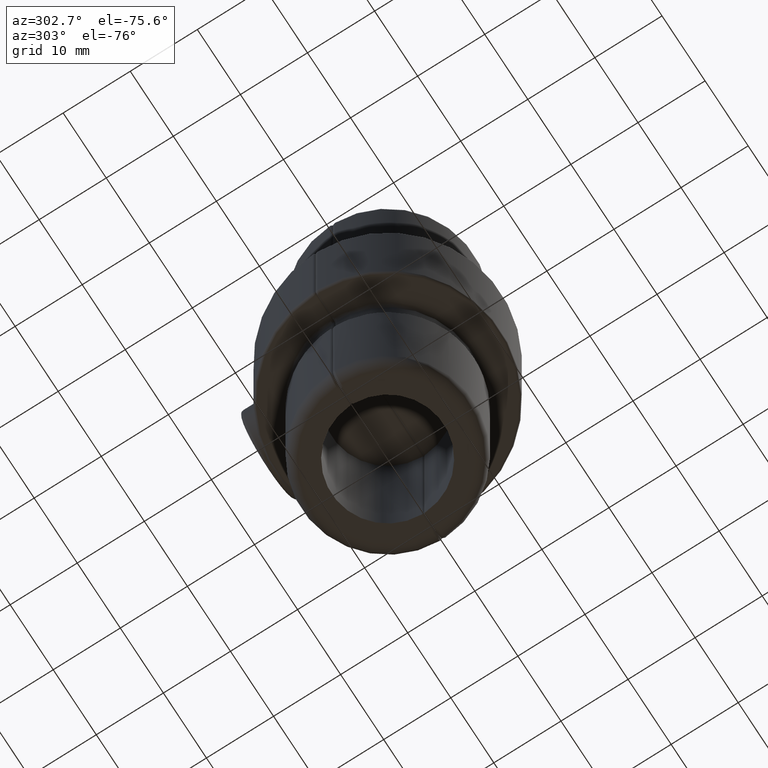
[diagram: clean part render]
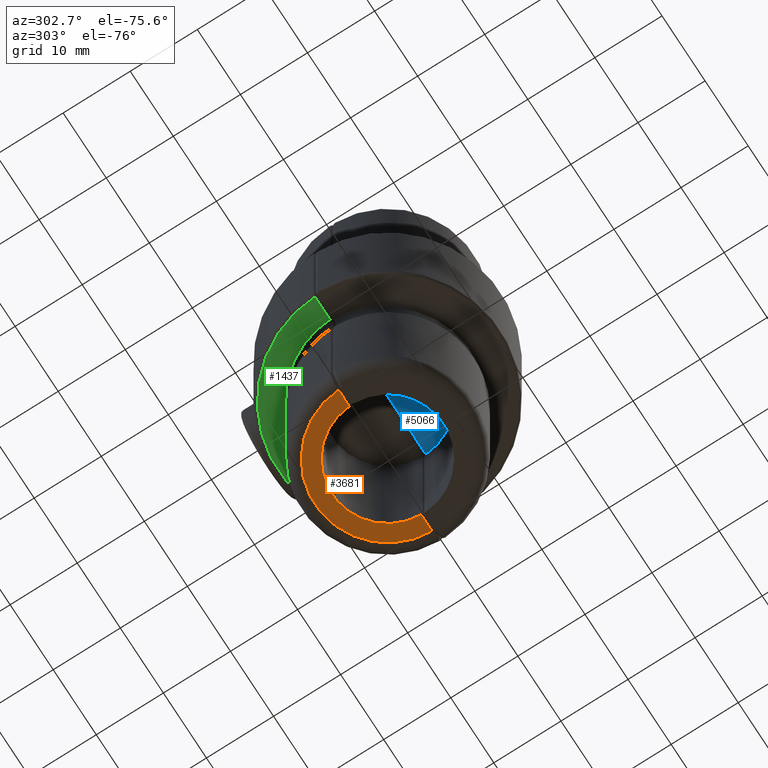
[diagram: same view with three faces highlighted in distinct colors, each labeled with its STEP entity id]
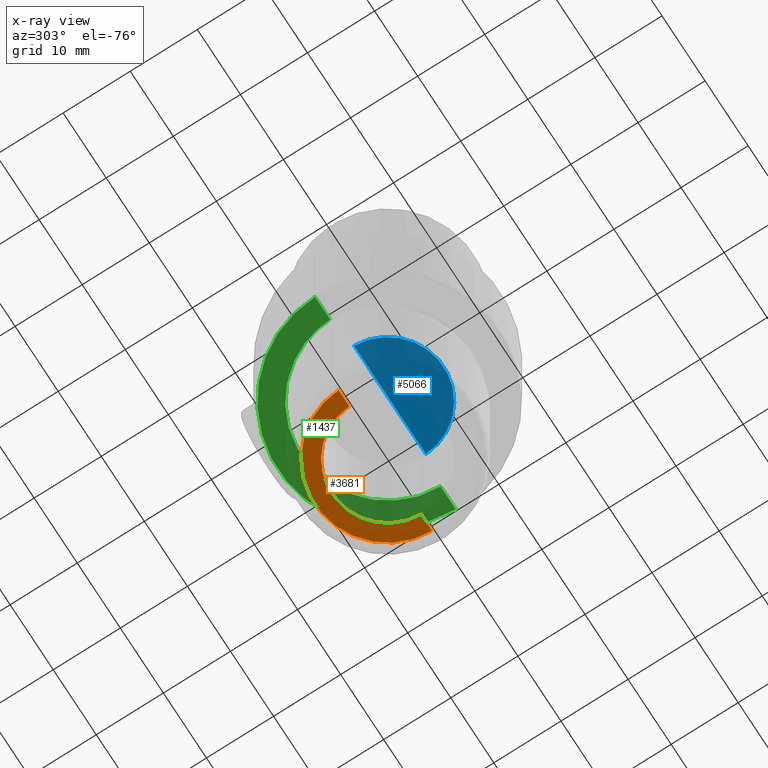
[diagram: x-ray of the same camera — body ghosted, the three highlighted faces saturated]
A machine part, auxiliary view with three faces highlighted in distinct colors.
The next image is the same camera in x-ray (body ghosted, the three faces saturated) — at least one of them is partly hidden behind the body in this view.
Their STEP definitions:

[orange] entity #3681 — the highlighted planar face has unit normal (0, 0, -1).
#184 = CARTESIAN_POINT ( 'NONE',  ( 8.348652585896717326, 0.5000000000000046629, -39.00000000000000000 ) ) ;
#228 = DIRECTION ( 'NONE',  ( 0.000000000000000000, 0.000000000000000000, -1.000000000000000000 ) ) ;
#406 = DIRECTION ( 'NONE',  ( -1.000000000000000000, -1.836970198721029688E-16, -0.000000000000000000 ) ) ;
#694 = CARTESIAN_POINT ( 'NONE',  ( -10.84435336938076411, 0.5000000000000011102, -39.00000000000000000 ) ) ;
#909 = ORIENTED_EDGE ( 'NONE', *, *, #5949, .T. ) ;
#1105 = EDGE_CURVE ( 'NONE', #5394, #2167, #6051, .T. ) ;
#1385 = ORIENTED_EDGE ( 'NONE', *, *, #1105, .F. ) ;
#1401 = EDGE_LOOP ( 'NONE', ( #6888, #909, #1385, #4812 ) ) ;
#1902 = PLANE ( 'NONE',  #2338 ) ;
#1920 = VERTEX_POINT ( 'NONE', #694 ) ;
#2098 = LINE ( 'NONE', #6489, #8919 ) ;
#2167 = VERTEX_POINT ( 'NONE', #3927 ) ;
#2338 = AXIS2_PLACEMENT_3D ( 'NONE', #5591, #9508, #6512 ) ;
#2408 = VERTEX_POINT ( 'NONE', #4837 ) ;
#3081 = DIRECTION ( 'NONE',  ( 1.000000000000000000, 0.000000000000000000, 0.000000000000000000 ) ) ;
#3681 = ADVANCED_FACE ( 'NONE', ( #7705 ), #1902, .T. ) ;
#3927 = CARTESIAN_POINT ( 'NONE',  ( 8.342661445845683588, 0.5000000000000046629, -39.00000000000000000 ) ) ;
#4812 = ORIENTED_EDGE ( 'NONE', *, *, #7071, .T. ) ;
#4837 = CARTESIAN_POINT ( 'NONE',  ( 10.84435336938076411, 0.5000000000000051070, -39.00000000000000000 ) ) ;
#5200 = AXIS2_PLACEMENT_3D ( 'NONE', #9769, #9038, #3081 ) ;
#5302 = AXIS2_PLACEMENT_3D ( 'NONE', #5405, #228, #6175 ) ;
#5394 = VERTEX_POINT ( 'NONE', #7175 ) ;
#5405 = CARTESIAN_POINT ( 'NONE',  ( -2.755455298081558953E-17, 0.1500000000000008271, -39.00000000000000000 ) ) ;
#5591 = CARTESIAN_POINT ( 'NONE',  ( -2.755455298081558953E-17, 0.1500000000000008271, -39.00000000000000000 ) ) ;
#5949 = EDGE_CURVE ( 'NONE', #2408, #2167, #9077, .T. ) ;
#6051 = CIRCLE ( 'NONE', #5200, 8.349999999999999645 ) ;
#6155 = CIRCLE ( 'NONE', #5302, 10.84999999999999787 ) ;
#6175 = DIRECTION ( 'NONE',  ( -1.000000000000000000, 0.000000000000000000, 0.000000000000000000 ) ) ;
#6489 = CARTESIAN_POINT ( 'NONE',  ( -10.84896308409241250, 0.5000000000000011102, -39.00000000000000000 ) ) ;
#6512 = DIRECTION ( 'NONE',  ( 1.000000000000000000, 0.000000000000000000, 0.000000000000000000 ) ) ;
#6888 = ORIENTED_EDGE ( 'NONE', *, *, #8216, .T. ) ;
#7071 = EDGE_CURVE ( 'NONE', #5394, #1920, #2098, .T. ) ;
#7175 = CARTESIAN_POINT ( 'NONE',  ( -8.342661445845685364, 0.5000000000000015543, -39.00000000000000000 ) ) ;
#7705 = FACE_OUTER_BOUND ( 'NONE', #1401, .T. ) ;
#8029 = VECTOR ( 'NONE', #9282, 1000.000000000000000 ) ;
#8216 = EDGE_CURVE ( 'NONE', #1920, #2408, #6155, .T. ) ;
#8919 = VECTOR ( 'NONE', #406, 1000.000000000000000 ) ;
#9038 = DIRECTION ( 'NONE',  ( 0.000000000000000000, 0.000000000000000000, -1.000000000000000000 ) ) ;
#9077 = LINE ( 'NONE', #184, #8029 ) ;
#9282 = DIRECTION ( 'NONE',  ( -1.000000000000000000, -1.836970198721029688E-16, -0.000000000000000000 ) ) ;
#9508 = DIRECTION ( 'NONE',  ( 0.000000000000000000, 0.000000000000000000, -1.000000000000000000 ) ) ;
#9769 = CARTESIAN_POINT ( 'NONE',  ( -2.755455298081558953E-17, 0.1500000000000008271, -39.00000000000000000 ) ) ;

[blue] entity #5066 — the highlighted planar face has unit normal (-0, 0, -1).
#108 = DIRECTION ( 'NONE',  ( 1.000000000000000000, 0.000000000000000000, 0.000000000000000000 ) ) ;
#475 = CARTESIAN_POINT ( 'NONE',  ( 8.348652585896717326, 0.5000000000000045519, 10.00000000000000000 ) ) ;
#777 = EDGE_CURVE ( 'NONE', #2593, #1322, #8810, .T. ) ;
#835 = AXIS2_PLACEMENT_3D ( 'NONE', #2482, #6116, #108 ) ;
#1241 = DIRECTION ( 'NONE',  ( 0.000000000000000000, 0.000000000000000000, 1.000000000000000000 ) ) ;
#1322 = VERTEX_POINT ( 'NONE', #4754 ) ;
#2482 = CARTESIAN_POINT ( 'NONE',  ( -2.755455298081558953E-17, 0.1500000000000008271, 10.00000000000000000 ) ) ;
#2593 = VERTEX_POINT ( 'NONE', #3155 ) ;
#3155 = CARTESIAN_POINT ( 'NONE',  ( -8.342661445845685364, 0.5000000000000015543, 10.00000000000000000 ) ) ;
#3476 = PLANE ( 'NONE',  #9145 ) ;
#4128 = CIRCLE ( 'NONE', #835, 8.349999999999999645 ) ;
#4251 = CARTESIAN_POINT ( 'NONE',  ( -2.755455298081558953E-17, 0.1500000000000008271, 10.00000000000000000 ) ) ;
#4754 = CARTESIAN_POINT ( 'NONE',  ( 8.342661445845685364, 0.5000000000000045519, 10.00000000000000000 ) ) ;
#4956 = DIRECTION ( 'NONE',  ( 1.000000000000000000, 1.836970198721029688E-16, -0.000000000000000000 ) ) ;
#5066 = ADVANCED_FACE ( 'NONE', ( #9301 ), #3476, .T. ) ;
#6116 = DIRECTION ( 'NONE',  ( -0.000000000000000000, -0.000000000000000000, -1.000000000000000000 ) ) ;
#6665 = VECTOR ( 'NONE', #4956, 1000.000000000000000 ) ;
#7287 = DIRECTION ( 'NONE',  ( 1.000000000000000000, 0.000000000000000000, -0.000000000000000000 ) ) ;
#8158 = ORIENTED_EDGE ( 'NONE', *, *, #777, .T. ) ;
#8810 = LINE ( 'NONE', #475, #6665 ) ;
#9062 = EDGE_CURVE ( 'NONE', #2593, #1322, #4128, .T. ) ;
#9145 = AXIS2_PLACEMENT_3D ( 'NONE', #4251, #1241, #7287 ) ;
#9301 = FACE_OUTER_BOUND ( 'NONE', #9721, .T. ) ;
#9665 = ORIENTED_EDGE ( 'NONE', *, *, #9062, .F. ) ;
#9721 = EDGE_LOOP ( 'NONE', ( #9665, #8158 ) ) ;

[green] entity #1437 — the highlighted planar face has unit normal (0, 0, 1).
#380 = CARTESIAN_POINT ( 'NONE',  ( 6.885843998586665293, 11.00329945879817295, -10.00000000000000000 ) ) ;
#477 = CARTESIAN_POINT ( 'NONE',  ( 2.540897887287872692, 12.76942476014091454, -9.999999999999996447 ) ) ;
#504 = CARTESIAN_POINT ( 'NONE',  ( -11.37930206028842584, 6.164051290130696081, -9.999999999999998224 ) ) ;
#634 = CARTESIAN_POINT ( 'NONE',  ( -12.75110852337692791, 1.812377812440020719, -10.00000000000000000 ) ) ;
#691 = VECTOR ( 'NONE', #2243, 1000.000000000000000 ) ;
#761 = CARTESIAN_POINT ( 'NONE',  ( -9.184850993605203904E-17, 0.5000000000000029976, -10.00000000000000000 ) ) ;
#914 = EDGE_CURVE ( 'NONE', #8828, #1044, #5194, .T. ) ;
#1044 = VERTEX_POINT ( 'NONE', #9577 ) ;
#1124 = DIRECTION ( 'NONE',  ( -1.000000000000000000, -1.836970198721029688E-16, 0.000000000000000000 ) ) ;
#1141 = CARTESIAN_POINT ( 'NONE',  ( -2.155108147686611186, 12.84049915917405471, -10.00000000000000178 ) ) ;
#1231 = CIRCLE ( 'NONE', #3780, 16.34999999999999787 ) ;
#1247 = CARTESIAN_POINT ( 'NONE',  ( 5.866189509532040880, 11.58833316633450394, -9.999999999999998224 ) ) ;
#1320 = DIRECTION ( 'NONE',  ( 0.000000000000000000, 0.000000000000000000, 1.000000000000000000 ) ) ;
#1437 = ADVANCED_FACE ( 'NONE', ( #2805 ), #9624, .F. ) ;
#1552 = ORIENTED_EDGE ( 'NONE', *, *, #3401, .T. ) ;
#1576 = CARTESIAN_POINT ( 'NONE',  ( -12.64022887126930961, 2.462382771499944223, -10.00000000000000178 ) ) ;
#1742 = ORIENTED_EDGE ( 'NONE', *, *, #8246, .T. ) ;
#1913 = VERTEX_POINT ( 'NONE', #9647 ) ;
#1925 = CARTESIAN_POINT ( 'NONE',  ( -11.72376395709909502, 5.461143138995793400, -9.999999999999991118 ) ) ;
#2023 = CARTESIAN_POINT ( 'NONE',  ( -5.514387994760912903, 11.76236265596844532, -9.999999999999996447 ) ) ;
#2243 = DIRECTION ( 'NONE',  ( -1.000000000000000000, -1.836970198721029688E-16, 0.000000000000000000 ) ) ;
#2477 = CARTESIAN_POINT ( 'NONE',  ( 10.32071216404674630, 7.817370794939916934, -10.00000000000000000 ) ) ;
#2648 = CARTESIAN_POINT ( 'NONE',  ( 9.575473734384624791, 8.730164304746569570, -9.999999999999998224 ) ) ;
#2681 = CARTESIAN_POINT ( 'NONE',  ( 8.176148119365231892, 10.09101989074938999, -10.00000000000000178 ) ) ;
#2713 = CARTESIAN_POINT ( 'NONE',  ( -0.9880222923344192942, 12.96735624638493434, -9.999999999999998224 ) ) ;
#2741 = CARTESIAN_POINT ( 'NONE',  ( -4.052560970918426264, 12.35039859048349875, -9.999999999999994671 ) ) ;
#2776 = CARTESIAN_POINT ( 'NONE',  ( 9.832780043565565009, 8.434974571440363889, -9.999999999999996447 ) ) ;
#2783 = ORIENTED_EDGE ( 'NONE', *, *, #914, .T. ) ;
#2805 = FACE_OUTER_BOUND ( 'NONE', #7119, .T. ) ;
#3070 = VECTOR ( 'NONE', #4371, 1000.000000000000000 ) ;
#3323 = CARTESIAN_POINT ( 'NONE',  ( 16.34625339336203709, 0.5000000000000061062, -10.00000000000000000 ) ) ;
#3354 = CARTESIAN_POINT ( 'NONE',  ( 11.55129057493279099, 5.805939482126071027, -10.00000000000000000 ) ) ;
#3401 = EDGE_CURVE ( 'NONE', #1044, #4783, #6532, .T. ) ;
#3414 = CARTESIAN_POINT ( 'NONE',  ( 3.687964333687342222, 12.46510183404609862, -9.999999999999998224 ) ) ;
#3452 = CARTESIAN_POINT ( 'NONE',  ( -8.458953737552290519, 9.829953521631926705, -10.00000000000000000 ) ) ;
#3481 = CARTESIAN_POINT ( 'NONE',  ( -12.27113833819325350, 3.997113472011610380, -10.00000000000000178 ) ) ;
#3509 = CARTESIAN_POINT ( 'NONE',  ( -10.55668007865074287, 7.514883108595856953, -10.00000000000000355 ) ) ;
#3589 = CARTESIAN_POINT ( 'NONE',  ( -9.184850993605203904E-17, 0.5000000000000029976, -10.00000000000000000 ) ) ;
#3601 = ORIENTED_EDGE ( 'NONE', *, *, #5906, .T. ) ;
#3641 = B_SPLINE_CURVE_WITH_KNOTS ( 'NONE', 3,
 ( #6290, #7815, #7096, #4821, #7854, #7134, #9365, #3354, #5583, #8657, #2477, #2776, #2648, #7921, #2681, #8756, #380, #5016, #1247, #7958, #4195, #5651, #3414, #477, #9529, #7167, #8017, #4259, #2713, #1141, #6469, #2741, #7989, #4990, #2023, #5755, #4218, #6530, #3452, #6499, #6441, #8049, #3509, #504, #1925, #8819, #3481, #9555, #7198, #8727 ),
 .UNSPECIFIED., .F., .F.,
 ( 4, 2, 2, 2, 2, 2, 2, 2, 2, 2, 2, 2, 2, 2, 2, 2, 2, 2, 2, 2, 2, 2, 2, 2, 4 ),
 ( 0.0004008829617938345995, 0.002751829971780098572, 0.003927303476773230315, 0.005102776981766362491, 0.007453723991752626843, 0.008629197496745757284, 0.009804671001738889460, 0.01215561801172515902, 0.01333109151671829293, 0.01450656502171142684, 0.01568203852670456075, 0.01685751203169769466, 0.01920845904168396248, 0.02038393254667709639, 0.02155940605167023724, 0.02391035306165650506, 0.02508582656664963897, 0.02626130007164277635, 0.02861224708162904418, 0.02978772058662217809, 0.03096319409161531547, 0.03331414110160159370, 0.03566508811158786846, 0.03684056161658099543, 0.03801603512157412934 ),
 .UNSPECIFIED. ) ;
#3659 = CARTESIAN_POINT ( 'NONE',  ( -12.82751316267089159, 0.4999999999996977418, -9.999999999999998224 ) ) ;
#3780 = AXIS2_PLACEMENT_3D ( 'NONE', #4026, #4811, #9262 ) ;
#4025 = VECTOR ( 'NONE', #1124, 1000.000000000000000 ) ;
#4026 = CARTESIAN_POINT ( 'NONE',  ( -2.755455298081558953E-17, 0.1500000000000008271, -10.00000000000000000 ) ) ;
#4097 = EDGE_CURVE ( 'NONE', #1913, #8828, #3641, .T. ) ;
#4195 = CARTESIAN_POINT ( 'NONE',  ( 4.800859329494868710, 12.07609053769583696, -10.00000000000000000 ) ) ;
#4218 = CARTESIAN_POINT ( 'NONE',  ( -7.217289064448604741, 10.80728151541808657, -10.00000000000000000 ) ) ;
#4259 = CARTESIAN_POINT ( 'NONE',  ( -0.5959961295651267088, 12.99212616883587046, -9.999999999999994671 ) ) ;
#4371 = DIRECTION ( 'NONE',  ( -1.000000000000000000, -1.836970198721029688E-16, 0.000000000000000000 ) ) ;
#4470 = CARTESIAN_POINT ( 'NONE',  ( -12.64022887126930961, 2.462382771499944223, -10.00000000000000178 ) ) ;
#4584 = AXIS2_PLACEMENT_3D ( 'NONE', #9598, #1320, #7367 ) ;
#4783 = VERTEX_POINT ( 'NONE', #6787 ) ;
#4811 = DIRECTION ( 'NONE',  ( -0.000000000000000000, -0.000000000000000000, -1.000000000000000000 ) ) ;
#4821 = CARTESIAN_POINT ( 'NONE',  ( 12.49919864427388383, 3.224033433045339514, -9.999999999999992895 ) ) ;
#4990 = CARTESIAN_POINT ( 'NONE',  ( -5.158360084370305465, 11.92562252004763579, -9.999999999999996447 ) ) ;
#5016 = CARTESIAN_POINT ( 'NONE',  ( 6.211136534834099443, 11.40410297905227210, -9.999999999999996447 ) ) ;
#5194 = B_SPLINE_CURVE_WITH_KNOTS ( 'NONE', 3,
 ( #4470, #634, #9779, #3659 ),
 .UNSPECIFIED., .F., .F.,
 ( 4, 4 ),
 ( 0.000000000000000000, 0.001971201165746851690 ),
 .UNSPECIFIED. ) ;
#5583 = CARTESIAN_POINT ( 'NONE',  ( 11.19115012595737468, 6.500449170246151098, -10.00000000000000000 ) ) ;
#5651 = CARTESIAN_POINT ( 'NONE',  ( 4.064815540797871662, 12.34626498947427642, -9.999999999999998224 ) ) ;
#5755 = CARTESIAN_POINT ( 'NONE',  ( -6.556570299760243081, 11.22604347668323221, -10.00000000000000178 ) ) ;
#5770 = LINE ( 'NONE', #3589, #3070 ) ;
#5906 = EDGE_CURVE ( 'NONE', #9283, #8893, #7094, .T. ) ;
#6290 = CARTESIAN_POINT ( 'NONE',  ( 12.82255779387073780, 0.5000000000000057732, -10.00000000000000000 ) ) ;
#6391 = ORIENTED_EDGE ( 'NONE', *, *, #4097, .T. ) ;
#6441 = CARTESIAN_POINT ( 'NONE',  ( -9.307902805768236476, 9.017985531504498553, -10.00000000000000178 ) ) ;
#6469 = CARTESIAN_POINT ( 'NONE',  ( -2.921353099192293357, 12.68690416337791582, -9.999999999999994671 ) ) ;
#6499 = CARTESIAN_POINT ( 'NONE',  ( -9.034101056827379850, 9.296773176652449067, -9.999999999999998224 ) ) ;
#6530 = CARTESIAN_POINT ( 'NONE',  ( -8.156262841678149300, 10.08551763396835632, -9.999999999999998224 ) ) ;
#6532 = LINE ( 'NONE', #7114, #4025 ) ;
#6787 = CARTESIAN_POINT ( 'NONE',  ( -16.34625339336203709, 0.5000000000000000000, -10.00000000000000000 ) ) ;
#7094 = LINE ( 'NONE', #761, #691 ) ;
#7096 = CARTESIAN_POINT ( 'NONE',  ( 12.72513200808658773, 2.068450924521212375, -9.999999999999994671 ) ) ;
#7114 = CARTESIAN_POINT ( 'NONE',  ( -9.184850993605205137E-17, 0.5000000000000029976, -10.00000000000000000 ) ) ;
#7119 = EDGE_LOOP ( 'NONE', ( #3601, #8417, #6391, #2783, #1552, #1742 ) ) ;
#7134 = CARTESIAN_POINT ( 'NONE',  ( 12.15564606121414570, 4.359843077359262686, -10.00000000000000000 ) ) ;
#7167 = CARTESIAN_POINT ( 'NONE',  ( 0.5902968804123474023, 12.99227620649749504, -10.00000000000000178 ) ) ;
#7198 = CARTESIAN_POINT ( 'NONE',  ( -12.57370126561923662, 2.853262775315919431, -10.00000000000000000 ) ) ;
#7367 = DIRECTION ( 'NONE',  ( 1.000000000000000000, 0.000000000000000000, -0.000000000000000000 ) ) ;
#7815 = CARTESIAN_POINT ( 'NONE',  ( 12.77817943605021611, 1.284813999977697296, -10.00000000000000000 ) ) ;
#7854 = CARTESIAN_POINT ( 'NONE',  ( 12.39917427993626475, 3.607918198757075867, -10.00000000000000000 ) ) ;
#7921 = CARTESIAN_POINT ( 'NONE',  ( 8.765673968874247990, 9.577080565118837541, -9.999999999999996447 ) ) ;
#7958 = CARTESIAN_POINT ( 'NONE',  ( 5.161062552476143317, 11.92435174752817595, -9.999999999999998224 ) ) ;
#7989 = CARTESIAN_POINT ( 'NONE',  ( -4.428153881684760762, 12.21952970892121826, -10.00000000000000000 ) ) ;
#8017 = CARTESIAN_POINT ( 'NONE',  ( 0.1943759253529671605, 13.00473746981072232, -10.00000000000000000 ) ) ;
#8049 = CARTESIAN_POINT ( 'NONE',  ( -10.08860279382253289, 8.145570860625433340, -10.00000000000000178 ) ) ;
#8246 = EDGE_CURVE ( 'NONE', #4783, #9283, #1231, .T. ) ;
#8417 = ORIENTED_EDGE ( 'NONE', *, *, #8437, .T. ) ;
#8437 = EDGE_CURVE ( 'NONE', #8893, #1913, #5770, .T. ) ;
#8657 = CARTESIAN_POINT ( 'NONE',  ( 10.55205864490824652, 7.493528754113089718, -10.00000000000000000 ) ) ;
#8727 = CARTESIAN_POINT ( 'NONE',  ( -12.64022887126930961, 2.462382771499944223, -10.00000000000000178 ) ) ;
#8756 = CARTESIAN_POINT ( 'NONE',  ( 7.217080960136633472, 10.78562633288142969, -9.999999999999996447 ) ) ;
#8819 = CARTESIAN_POINT ( 'NONE',  ( -12.14617540121382078, 4.368006907582969944, -9.999999999999992895 ) ) ;
#8828 = VERTEX_POINT ( 'NONE', #1576 ) ;
#8885 = CARTESIAN_POINT ( 'NONE',  ( 12.82471248368560879, 0.5000000000243086662, -10.00000000000000000 ) ) ;
#8893 = VERTEX_POINT ( 'NONE', #8885 ) ;
#9262 = DIRECTION ( 'NONE',  ( 1.000000000000000000, 0.000000000000000000, 0.000000000000000000 ) ) ;
#9283 = VERTEX_POINT ( 'NONE', #3323 ) ;
#9365 = CARTESIAN_POINT ( 'NONE',  ( 12.01403535002631351, 4.726033845011244239, -10.00000000000000178 ) ) ;
#9529 = CARTESIAN_POINT ( 'NONE',  ( 1.766451621626334401, 12.90100300336728623, -10.00000000000000178 ) ) ;
#9555 = CARTESIAN_POINT ( 'NONE',  ( -12.48481546737578718, 3.240419005263673213, -10.00000000000000000 ) ) ;
#9577 = CARTESIAN_POINT ( 'NONE',  ( -12.82751316267089159, 0.4999999999996977418, -9.999999999999998224 ) ) ;
#9598 = CARTESIAN_POINT ( 'NONE',  ( -2.755455298081558953E-17, 0.1500000000000008271, -10.00000000000000000 ) ) ;
#9624 = PLANE ( 'NONE',  #4584 ) ;
#9647 = CARTESIAN_POINT ( 'NONE',  ( 12.82255779387073780, 0.5000000000000057732, -10.00000000000000000 ) ) ;
#9779 = CARTESIAN_POINT ( 'NONE',  ( -12.79629459983824091, 1.156782391571275159, -9.999999999999998224 ) ) ;